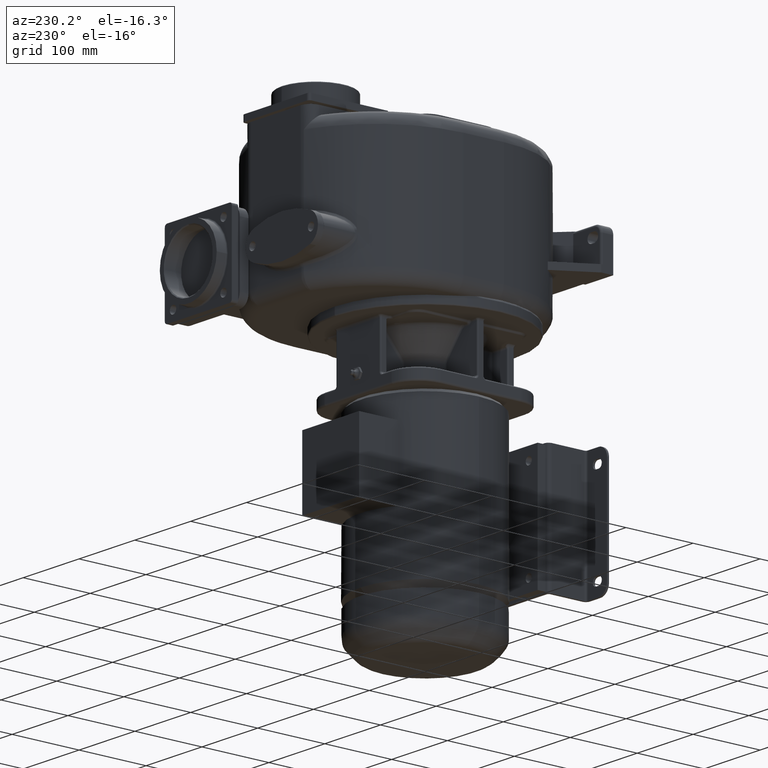
[diagram: clean part render]
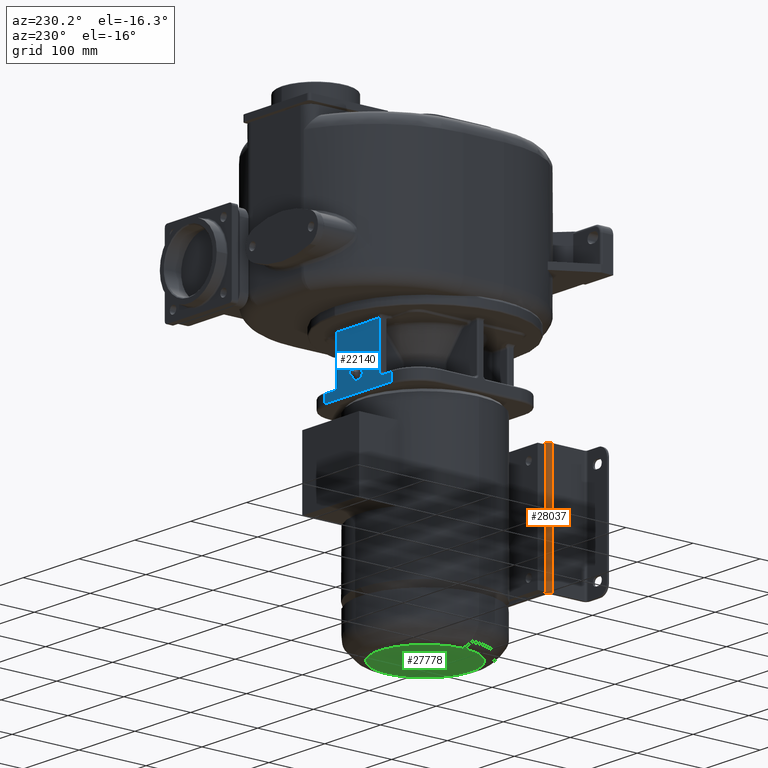
[diagram: same view with three faces highlighted in distinct colors, each labeled with its STEP entity id]
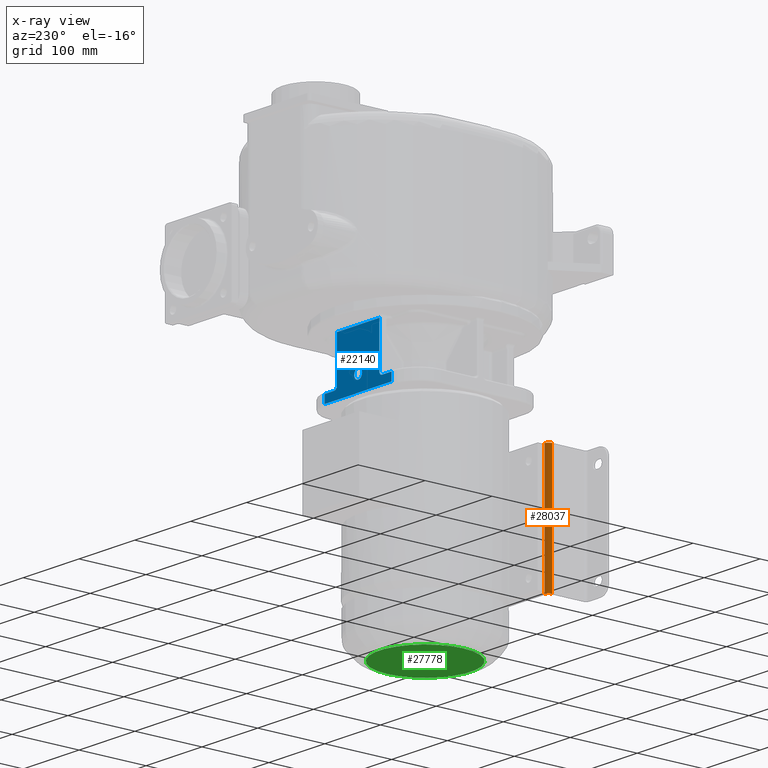
[diagram: x-ray of the same camera — body ghosted, the three highlighted faces saturated]
A machine part, auxiliary view with three faces highlighted in distinct colors.
The next image is the same camera in x-ray (body ghosted, the three faces saturated) — at least one of them is partly hidden behind the body in this view.
Their STEP definitions:

[orange] entity #28037 — the highlighted cylindrical surface (edge-blend (fillet) strip) has radius 6 mm, axis along (0, 0, 1).
#10669=DIRECTION('',(0.E0,0.E0,1.E0));
#10670=VECTOR('',#10669,1.76E2);
#10671=CARTESIAN_POINT('',(-9.4E1,-1.E2,-2.21E2));
#10672=LINE('',#10671,#10670);
#10685=DIRECTION('',(0.E0,0.E0,1.E0));
#10686=VECTOR('',#10685,2.E0);
#10687=CARTESIAN_POINT('',(-9.4E1,-1.E2,-4.5E1));
#10688=LINE('',#10687,#10686);
#10689=DIRECTION('',(0.E0,0.E0,1.E0));
#10690=VECTOR('',#10689,2.E0);
#10691=CARTESIAN_POINT('',(-9.4E1,-1.E2,-2.23E2));
#10692=LINE('',#10691,#10690);
#10693=CARTESIAN_POINT('',(-9.4E1,-1.06E2,-4.3E1));
#10694=DIRECTION('',(0.E0,0.E0,1.E0));
#10695=DIRECTION('',(0.E0,1.E0,0.E0));
#10696=AXIS2_PLACEMENT_3D('',#10693,#10694,#10695);
#10889=CARTESIAN_POINT('',(-9.4E1,-1.06E2,-2.23E2));
#10890=DIRECTION('',(0.E0,0.E0,1.E0));
#10891=DIRECTION('',(0.E0,1.E0,0.E0));
#10892=AXIS2_PLACEMENT_3D('',#10889,#10890,#10891);
#10915=DIRECTION('',(0.E0,0.E0,1.E0));
#10916=VECTOR('',#10915,1.8E2);
#10917=CARTESIAN_POINT('',(-1.E2,-1.06E2,-2.23E2));
#10918=LINE('',#10917,#10916);
#12753=CARTESIAN_POINT('',(-9.4E1,-1.E2,-2.23E2));
#12754=VERTEX_POINT('',#12753);
#12755=CARTESIAN_POINT('',(-1.E2,-1.06E2,-2.23E2));
#12756=VERTEX_POINT('',#12755);
#12769=CARTESIAN_POINT('',(-9.4E1,-1.E2,-4.3E1));
#12770=VERTEX_POINT('',#12769);
#12771=CARTESIAN_POINT('',(-1.E2,-1.06E2,-4.3E1));
#12772=VERTEX_POINT('',#12771);
#12925=CARTESIAN_POINT('',(-9.4E1,-1.E2,-2.21E2));
#12926=CARTESIAN_POINT('',(-9.4E1,-1.E2,-4.5E1));
#12927=VERTEX_POINT('',#12925);
#12928=VERTEX_POINT('',#12926);
#28021=CARTESIAN_POINT('',(-9.4E1,-1.06E2,-2.23E2));
#28022=DIRECTION('',(0.E0,0.E0,1.E0));
#28023=DIRECTION('',(1.E0,0.E0,0.E0));
#28024=AXIS2_PLACEMENT_3D('',#28021,#28022,#28023);
#28025=CYLINDRICAL_SURFACE('',#28024,6.E0);
#28026=ORIENTED_EDGE('',*,*,#28012,.T.);
#28027=ORIENTED_EDGE('',*,*,#27894,.T.);
#28029=ORIENTED_EDGE('',*,*,#28028,.T.);
#28031=ORIENTED_EDGE('',*,*,#28030,.F.);
#28033=ORIENTED_EDGE('',*,*,#28032,.F.);
#28034=ORIENTED_EDGE('',*,*,#27902,.T.);
#28035=EDGE_LOOP('',(#28026,#28027,#28029,#28031,#28033,#28034));
#28036=FACE_OUTER_BOUND('',#28035,.F.);
#28037=ADVANCED_FACE('',(#28036),#28025,.T.);
#10697=CIRCLE('',#10696,6.E0);
#10893=CIRCLE('',#10892,6.E0);
#27894=EDGE_CURVE('',#12928,#12770,#10688,.T.);
#27902=EDGE_CURVE('',#12754,#12927,#10692,.T.);
#28012=EDGE_CURVE('',#12927,#12928,#10672,.T.);
#28028=EDGE_CURVE('',#12770,#12772,#10697,.T.);
#28030=EDGE_CURVE('',#12756,#12772,#10918,.T.);
#28032=EDGE_CURVE('',#12754,#12756,#10893,.T.);

[blue] entity #22140 — the highlighted planar face has unit normal (0, 1, 0).
#7289=DIRECTION('',(-1.E0,0.E0,-1.035929512112E-12));
#7290=VECTOR('',#7289,1.699999999991E1);
#7291=CARTESIAN_POINT('',(-4.300000000008E1,1.E2,1.300000000002E1));
#7292=LINE('',#7291,#7290);
#7293=DIRECTION('',(-3.274417773961E-13,0.E0,-1.E0));
#7294=VECTOR('',#7293,1.2E1);
#7295=CARTESIAN_POINT('',(-5.999999999999E1,1.E2,1.3E1));
#7296=LINE('',#7295,#7294);
#7297=DIRECTION('',(1.E0,0.E0,0.E0));
#7298=VECTOR('',#7297,1.2E2);
#7299=CARTESIAN_POINT('',(-6.E1,1.E2,1.E0));
#7300=LINE('',#7299,#7298);
#7301=DIRECTION('',(-1.E0,0.E0,2.068724276869E-12));
#7302=VECTOR('',#7301,1.699999999984E1);
#7303=CARTESIAN_POINT('',(6.E1,1.E2,1.3E1));
#7304=LINE('',#7303,#7302);
#7305=CARTESIAN_POINT('',(4.3E1,1.E2,1.8E1));
#7306=DIRECTION('',(0.E0,1.E0,0.E0));
#7307=DIRECTION('',(0.E0,0.E0,-1.E0));
#7308=AXIS2_PLACEMENT_3D('',#7305,#7306,#7307);
#7310=DIRECTION('',(1.854072451126E-13,0.E0,1.E0));
#7311=VECTOR('',#7310,6.399999999992E1);
#7312=CARTESIAN_POINT('',(3.800000000002E1,1.E2,1.800000000008E1));
#7313=LINE('',#7312,#7311);
#7314=DIRECTION('',(1.E0,0.E0,0.E0));
#7315=VECTOR('',#7314,7.600000000003E1);
#7316=CARTESIAN_POINT('',(-3.800000000001E1,1.E2,8.2E1));
#7317=LINE('',#7316,#7315);
#7318=DIRECTION('',(-3.596012376770E-13,0.E0,-1.E0));
#7319=VECTOR('',#7318,6.399999999983E1);
#7320=CARTESIAN_POINT('',(-3.800000000001E1,1.E2,8.2E1));
#7321=LINE('',#7320,#7319);
#7322=CARTESIAN_POINT('',(-4.3E1,1.E2,1.8E1));
#7323=DIRECTION('',(0.E0,1.E0,0.E0));
#7324=DIRECTION('',(1.E0,0.E0,0.E0));
#7325=AXIS2_PLACEMENT_3D('',#7322,#7323,#7324);
#7327=CARTESIAN_POINT('',(3.915682068433E-14,1.E2,2.35E1));
#7328=DIRECTION('',(0.E0,1.E0,0.E0));
#7329=DIRECTION('',(0.E0,0.E0,1.E0));
#7330=AXIS2_PLACEMENT_3D('',#7327,#7328,#7329);
#7332=CARTESIAN_POINT('',(3.915682068433E-14,1.E2,2.35E1));
#7333=DIRECTION('',(0.E0,1.E0,0.E0));
#7334=DIRECTION('',(8.660254037843E-1,0.E0,5.000000000002E-1));
#7335=AXIS2_PLACEMENT_3D('',#7332,#7333,#7334);
#7337=CARTESIAN_POINT('',(3.915682068433E-14,1.E2,2.35E1));
#7338=DIRECTION('',(0.E0,1.E0,0.E0));
#7339=DIRECTION('',(8.660254037844E-1,0.E0,-5.E-1));
#7340=AXIS2_PLACEMENT_3D('',#7337,#7338,#7339);
#7342=CARTESIAN_POINT('',(3.915682068433E-14,1.E2,2.35E1));
#7343=DIRECTION('',(0.E0,1.E0,0.E0));
#7344=DIRECTION('',(0.E0,0.E0,-1.E0));
#7345=AXIS2_PLACEMENT_3D('',#7342,#7343,#7344);
#7347=CARTESIAN_POINT('',(3.915682068433E-14,1.E2,2.35E1));
#7348=DIRECTION('',(0.E0,1.E0,0.E0));
#7349=DIRECTION('',(-8.660254037844E-1,0.E0,-5.000000000001E-1));
#7350=AXIS2_PLACEMENT_3D('',#7347,#7348,#7349);
#7352=CARTESIAN_POINT('',(3.915682068433E-14,1.E2,2.35E1));
#7353=DIRECTION('',(0.E0,1.E0,0.E0));
#7354=DIRECTION('',(-8.660254037844E-1,0.E0,5.000000000001E-1));
#7355=AXIS2_PLACEMENT_3D('',#7352,#7353,#7354);
#9504=DIRECTION('',(-1.657933050107E-13,0.E0,-1.E0));
#9505=VECTOR('',#9504,1.2E1);
#9506=CARTESIAN_POINT('',(6.E1,1.E2,1.3E1));
#9507=LINE('',#9506,#9505);
#13427=CARTESIAN_POINT('',(-6.E1,1.E2,1.E0));
#13429=VERTEX_POINT('',#13427);
#13432=CARTESIAN_POINT('',(6.E1,1.E2,1.E0));
#13433=VERTEX_POINT('',#13432);
#13725=CARTESIAN_POINT('',(6.E1,1.E2,1.3E1));
#13726=VERTEX_POINT('',#13725);
#13731=CARTESIAN_POINT('',(-4.300000000008E1,1.E2,1.300000000002E1));
#13732=CARTESIAN_POINT('',(-5.999999999999E1,1.E2,1.3E1));
#13733=VERTEX_POINT('',#13731);
#13734=VERTEX_POINT('',#13732);
#13739=CARTESIAN_POINT('',(4.3E1,1.E2,1.3E1));
#13740=CARTESIAN_POINT('',(3.8E1,1.E2,1.8E1));
#13741=VERTEX_POINT('',#13739);
#13742=VERTEX_POINT('',#13740);
#13743=CARTESIAN_POINT('',(3.800000000003E1,1.E2,8.2E1));
#13744=VERTEX_POINT('',#13743);
#13755=CARTESIAN_POINT('',(-3.800000000001E1,1.E2,8.2E1));
#13756=VERTEX_POINT('',#13755);
#13797=CARTESIAN_POINT('',(-3.800000000003E1,1.E2,1.800000000017E1));
#13798=VERTEX_POINT('',#13797);
#13986=CARTESIAN_POINT('',(0.E0,1.E2,3.05E1));
#13987=CARTESIAN_POINT('',(6.062177826490E0,1.E2,2.7E1));
#13988=VERTEX_POINT('',#13986);
#13989=VERTEX_POINT('',#13987);
#13990=CARTESIAN_POINT('',(6.062177826491E0,1.E2,2.E1));
#13991=VERTEX_POINT('',#13990);
#13992=CARTESIAN_POINT('',(0.E0,1.E2,1.65E1));
#13993=VERTEX_POINT('',#13992);
#13994=CARTESIAN_POINT('',(-6.062177826491E0,1.E2,2.E1));
#13995=VERTEX_POINT('',#13994);
#13996=CARTESIAN_POINT('',(-6.062177826491E0,1.E2,2.7E1));
#13997=VERTEX_POINT('',#13996);
#22102=CARTESIAN_POINT('',(-6.E1,1.E2,1.5E1));
#22103=DIRECTION('',(0.E0,1.E0,0.E0));
#22104=DIRECTION('',(1.E0,0.E0,0.E0));
#22105=AXIS2_PLACEMENT_3D('',#22102,#22103,#22104);
#22106=PLANE('',#22105);
#22108=ORIENTED_EDGE('',*,*,#22107,.T.);
#22110=ORIENTED_EDGE('',*,*,#22109,.T.);
#22112=ORIENTED_EDGE('',*,*,#22111,.T.);
#22114=ORIENTED_EDGE('',*,*,#22113,.F.);
#22116=ORIENTED_EDGE('',*,*,#22115,.T.);
#22118=ORIENTED_EDGE('',*,*,#22117,.T.);
#22119=ORIENTED_EDGE('',*,*,#22092,.T.);
#22120=ORIENTED_EDGE('',*,*,#14323,.F.);
#22121=ORIENTED_EDGE('',*,*,#14295,.T.);
#22123=ORIENTED_EDGE('',*,*,#22122,.T.);
#22124=EDGE_LOOP('',(#22108,#22110,#22112,#22114,#22116,#22118,#22119,#22120,
#22121,#22123));
#22125=FACE_OUTER_BOUND('',#22124,.F.);
#22127=ORIENTED_EDGE('',*,*,#22126,.T.);
#22129=ORIENTED_EDGE('',*,*,#22128,.T.);
#22131=ORIENTED_EDGE('',*,*,#22130,.T.);
#22133=ORIENTED_EDGE('',*,*,#22132,.T.);
#22135=ORIENTED_EDGE('',*,*,#22134,.T.);
#22137=ORIENTED_EDGE('',*,*,#22136,.T.);
#22138=EDGE_LOOP('',(#22127,#22129,#22131,#22133,#22135,#22137));
#22139=FACE_BOUND('',#22138,.F.);
#22140=ADVANCED_FACE('',(#22125,#22139),#22106,.T.);
#7309=CIRCLE('',#7308,5.E0);
#7326=CIRCLE('',#7325,5.E0);
#7331=CIRCLE('',#7330,7.E0);
#7336=CIRCLE('',#7335,7.E0);
#7341=CIRCLE('',#7340,7.E0);
#7346=CIRCLE('',#7345,7.E0);
#7351=CIRCLE('',#7350,7.E0);
#7356=CIRCLE('',#7355,7.E0);
#14295=EDGE_CURVE('',#13756,#13798,#7321,.T.);
#14323=EDGE_CURVE('',#13756,#13744,#7317,.T.);
#22092=EDGE_CURVE('',#13742,#13744,#7313,.T.);
#22107=EDGE_CURVE('',#13733,#13734,#7292,.T.);
#22109=EDGE_CURVE('',#13734,#13429,#7296,.T.);
#22111=EDGE_CURVE('',#13429,#13433,#7300,.T.);
#22113=EDGE_CURVE('',#13726,#13433,#9507,.T.);
#22115=EDGE_CURVE('',#13726,#13741,#7304,.T.);
#22117=EDGE_CURVE('',#13741,#13742,#7309,.T.);
#22122=EDGE_CURVE('',#13798,#13733,#7326,.T.);
#22126=EDGE_CURVE('',#13988,#13989,#7331,.T.);
#22128=EDGE_CURVE('',#13989,#13991,#7336,.T.);
#22130=EDGE_CURVE('',#13991,#13993,#7341,.T.);
#22132=EDGE_CURVE('',#13993,#13995,#7346,.T.);
#22134=EDGE_CURVE('',#13995,#13997,#7351,.T.);
#22136=EDGE_CURVE('',#13997,#13988,#7356,.T.);

[green] entity #27778 — the highlighted planar face has unit normal (0, 0, 1).
#10546=CARTESIAN_POINT('',(2.131629207280E-14,5.151435834261E-14,-3.01E2));
#10547=DIRECTION('',(0.E0,0.E0,-1.E0));
#10548=DIRECTION('',(1.E0,9.087340349504E-10,0.E0));
#10549=AXIS2_PLACEMENT_3D('',#10546,#10547,#10548);
#10551=CARTESIAN_POINT('',(9.237056564881E-14,-1.598720155460E-14,-3.01E2));
#10552=DIRECTION('',(0.E0,0.E0,-1.E0));
#10553=DIRECTION('',(-1.E0,-9.087362118187E-10,0.E0));
#10554=AXIS2_PLACEMENT_3D('',#10551,#10552,#10553);
#12647=CARTESIAN_POINT('',(6.821574175076E1,6.199001776266E-8,-3.01E2));
#12648=CARTESIAN_POINT('',(-6.821574175076E1,-6.199013514509E-8,-3.01E2));
#12649=VERTEX_POINT('',#12647);
#12650=VERTEX_POINT('',#12648);
#27768=CARTESIAN_POINT('',(0.E0,0.E0,-3.01E2));
#27769=DIRECTION('',(0.E0,0.E0,1.E0));
#27770=DIRECTION('',(1.E0,0.E0,0.E0));
#27771=AXIS2_PLACEMENT_3D('',#27768,#27769,#27770);
#27772=PLANE('',#27771);
#27774=ORIENTED_EDGE('',*,*,#27773,.F.);
#27775=ORIENTED_EDGE('',*,*,#27758,.F.);
#27776=EDGE_LOOP('',(#27774,#27775));
#27777=FACE_OUTER_BOUND('',#27776,.F.);
#27778=ADVANCED_FACE('',(#27777),#27772,.F.);
#10550=CIRCLE('',#10549,6.821574175076E1);
#10555=CIRCLE('',#10554,6.821574175076E1);
#27758=EDGE_CURVE('',#12650,#12649,#10555,.T.);
#27773=EDGE_CURVE('',#12649,#12650,#10550,.T.);